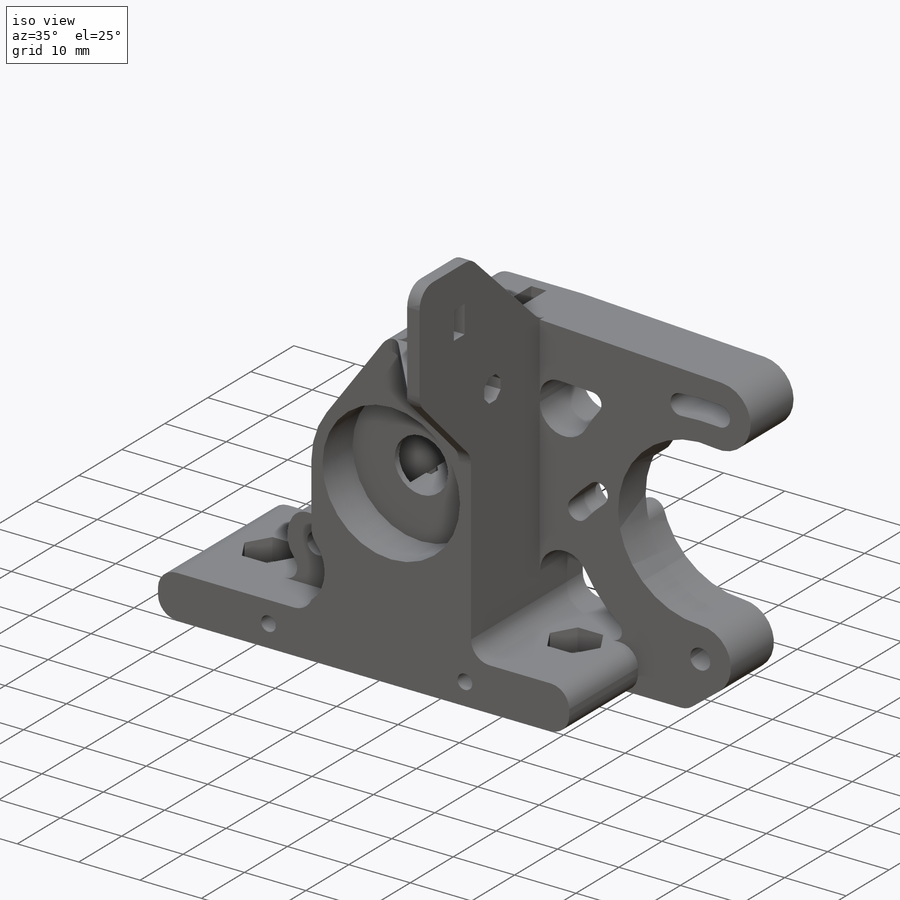
[diagram: iso view]
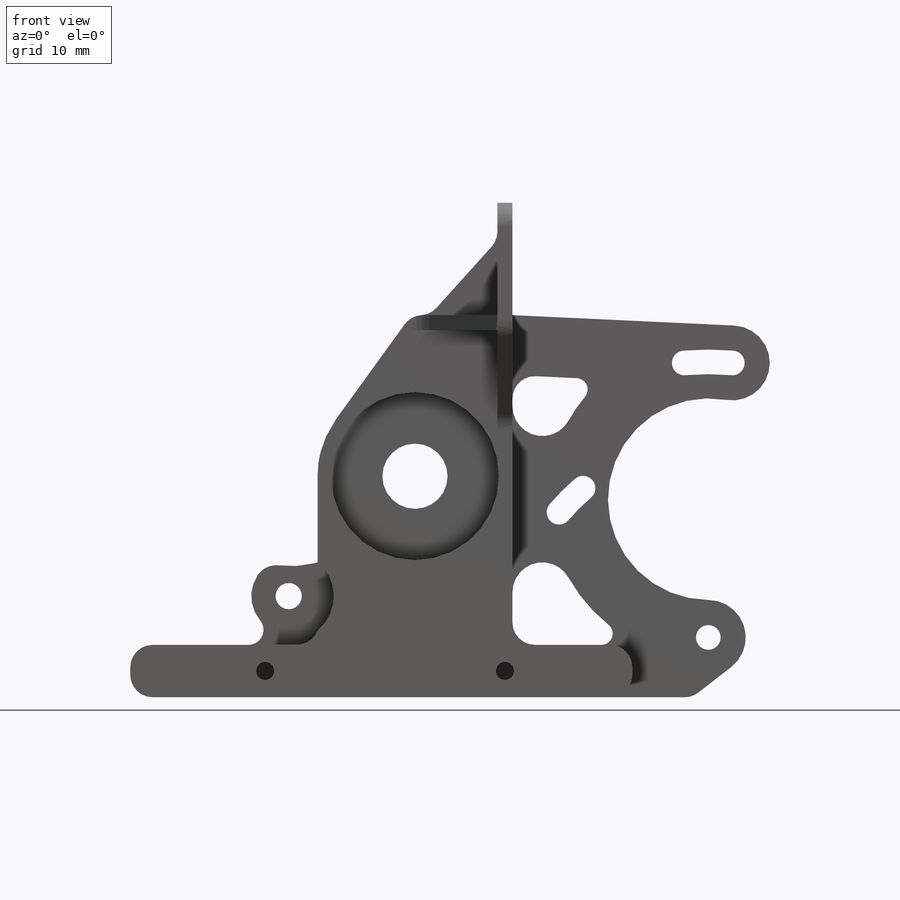
[diagram: front view]
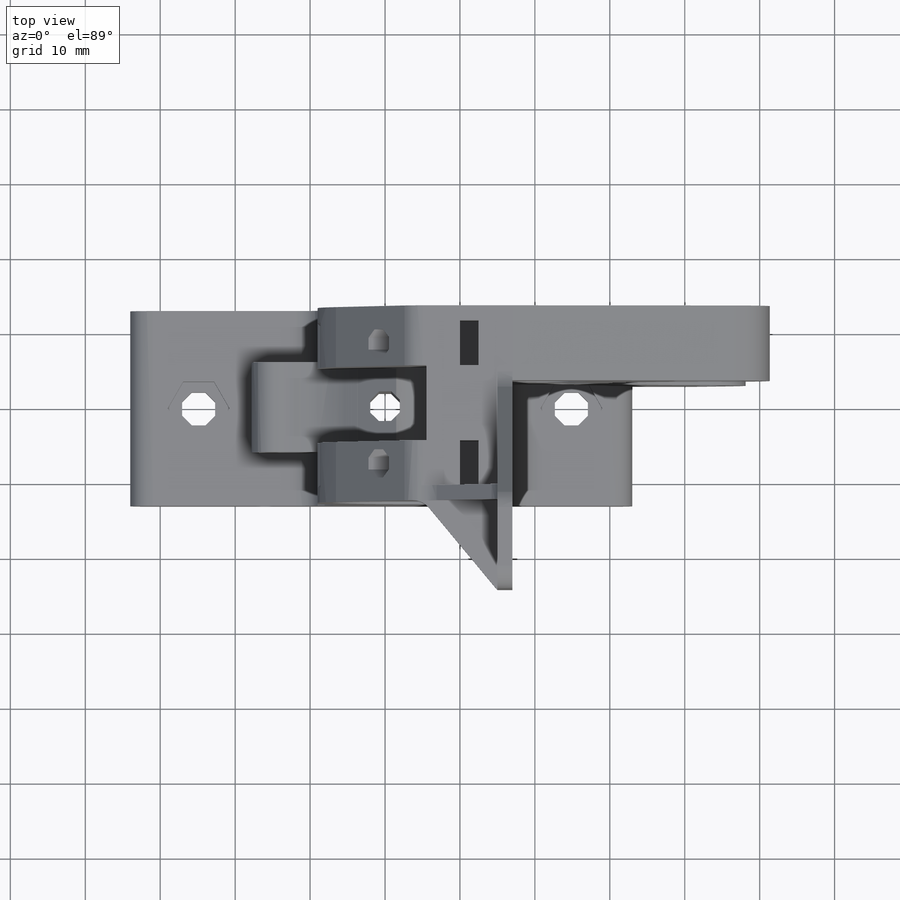
[diagram: top view]
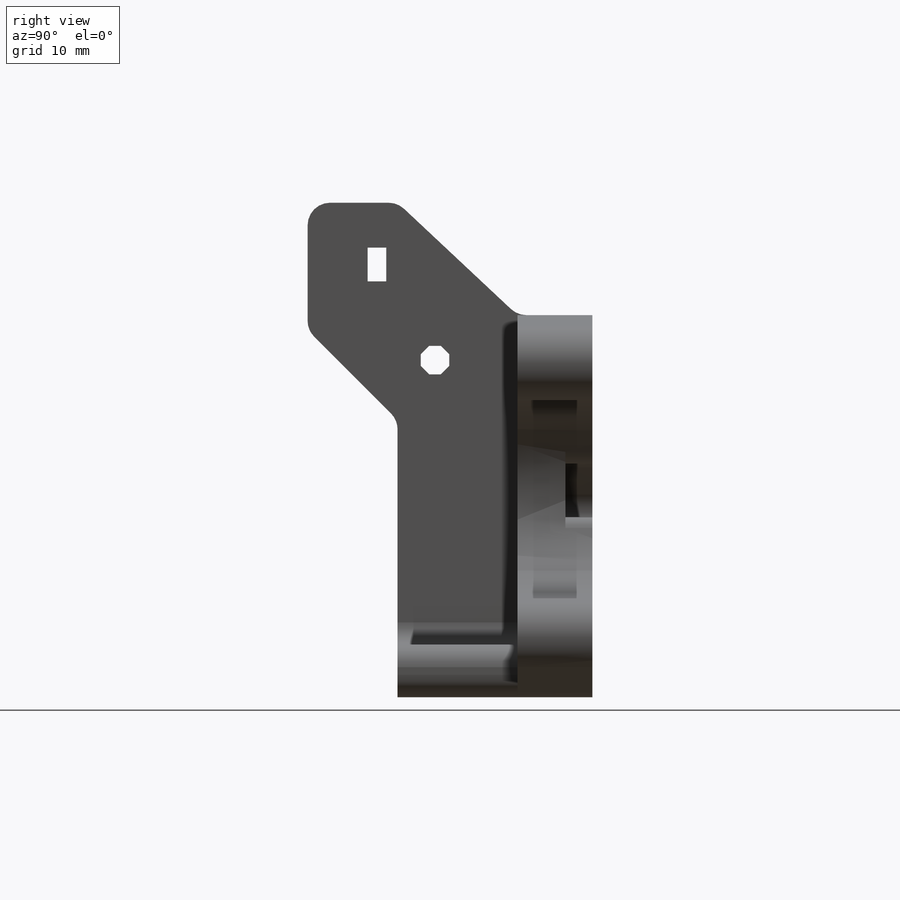
[diagram: right view]
SOLIDWORKS PART (.sldprt)
format: sldprt  version: not decoded by parser v0  size: 2,084,864 bytes
history: native  units: mm
features: sketch x29, cut_extrude x14, extrude x13, fillet x8, chamfer x2, material x1 (+13 scaffold rows collapsed; 1 parser-record rows omitted)
feature tree (81):
  scaffold x13  (default folders/planes/origin — collapsed)
  material  "Material <not specified>"
  sketch  "Base Sketch"  dims[c1.D1=17.0mm c1.D2=~49.581369mm c1.D3=~49.581369mm c2.D2=3.95mm c2.D3=4.4mm c2.D10=7.15mm c3.D3=~15.922975mm c3.D4=49.75mm c3.D5=~16.274285mm c3.D6=~62.927234mm c4.D5=34.0mm c4.D6=41.0mm c4.D7=26.0mm c4.D8=28.0mm c4.D9=~29.290401mm c5.D8=26.0mm c5.D9=29.0mm c5.D11=~8.858924mm c5.D12=~3.677289mm c6.D11=2.5mm c6.D12=6.0mm c6.D13=16.0mm c6.D14=4.5mm c6.D15=53.0mm c6.D9=17.0mm c7.D15=26.0mm c7.D16=~9.735093mm c8.D15=~12.171573mm c8.D16=~10.083902mm c9.D15=10.0mm c9.D16=8.0mm]
  extrude  "Base Plate"  Depth=7mm
  cut_extrude  "Mounting Nut Traps"  [1 undecoded]
  sketch  "Sketch1<6>"  dims[D1=3.5mm]
  cut_extrude  "Hot End Head Bore"  [1 undecoded]
  sketch  "Sketch1<3>"  dims[D1=4.6mm]
  extrude  "Riser Block"  [1 undecoded]
  sketch  "Sketch1<4>"  dims[D1=44.0mm]
  sketch  "Sketch2"  dims[c1.D1=3.5mm c1.D2=10.0mm c1.D6=8.7mm c1.D7=22.4mm c1.D8=22.2mm c1.D10=24.0mm c1.D5=12.0mm c2.D10=~8.574674mm c2.D11=24.0mm c2.D15=2.4mm c2.D19=3.0mm c2.D3=6.0mm c2.D4=10.5mm c2.D5=13.0mm c2.D8=13.0mm c2.D9=33.5mm c3.D11=14.0mm c3.D12=11.5mm c3.D13=~8.621144mm c3.D3=29.85mm c3.D4=37.5mm c4.D13=10.5mm c4.D9=21.5mm c5.D13=~4.153312mm c6.D13=45.0deg c6.D14=~10.541739mm c6.D10=16.0mm c7.D14=~14.052669mm c7.D10=12.5mm c8.D14=1.5mm c8.D15=~26.386789mm c8.D16=32.0mm c8.D17=3.5mm c8.D18=2.0mm]
  extrude  "Idler Hinge"  Depth=12mm
  cut_extrude  "Hobbed Bolt Bore"  [1 undecoded]
  sketch  "Sketch2<3>"
  cut_extrude  "Rear Bearing"  [1 undecoded]
  sketch  "Sketch2<4>"  dims[D1=7.0mm]
  cut_extrude  "Front Bearning"  [1 undecoded]
  sketch  "Sketch2<5>"  dims[D1=7.0mm]
  sketch  "Sketch4"  dims[c1.D1=~73.539105mm c1.D5=3.3mm c1.D6=27.65mm c1.D7=27.65mm c2.D6=10.0mm c2.D7=10.0mm c2.D8=10.0mm c2.D10=4.0mm c2.D11=1.5mm c2.D14=4.0mm c2.D15=1.5mm c2.D1=~36.769553mm c3.D1=5.0deg c3.D2=~36.769553mm c4.D2=5.0deg c4.D3=~18.384776mm c5.D3=5.0deg c5.D4=~22.323244mm c6.D4=5.0deg c6.D5=~18.384776mm c6.D7=~3.033128mm c6.D9=~5.402224mm c6.D11=~32.174246mm c6.D14=~6.721744mm c6.D15=~4.123648mm c6.D6=3.0mm c7.D9=8.0mm c7.D12=8.0mm c7.D13=8.0mm]
  cut_extrude  "Idler Nut Traps"  [1 undecoded]
  sketch  "Sketch1<5>"  dims[D1=9.0mm]
  cut_extrude  "Feed Channel"  [1 undecoded]
  sketch  "Sketch2<6>"  dims[D1=10.0mm D19=8.0mm]
  cut_extrude  "Front Hinge Relief"  [1 undecoded]
  sketch  "Sketch2<7>"
  cut_extrude  "Back Hinge Relief"  [1 undecoded]
  sketch  "Sketch2<8>"
  cut_extrude  "Round Top"  [1 undecoded]
  sketch  "Sketch2<10>"
  extrude  "Motor Mount"  Depth=10mm
  sketch  "Sketch3"  dims[D2=3.8mm D1=16.0mm D3=6.0mm]
  cut_extrude  "Idler Spring Screws"  Depth=32mm
  cut_extrude  "Fan Mount Screw Holes"  [1 undecoded]
  sketch  "Sketch2<11>"  dims[D1=15.0mm]
  fillet  "Fillet1"  Radius=3mm
  fillet  "Fillet2"  Radius=2mm
  sketch  "Sketch6"  dims[D1=2.0mm D2=2.0mm]
  cut_extrude  "Motor Screw Recesses"  Depth=3.6mm
  fillet  "Fillet3"  Radius=3mm
  fillet  "Fillet4"  Radius=2mm
  sketch  "Sketch11"  dims[D1=9.0mm D2=16.5mm]
  cut_extrude  "Pinch Pin Clearance"  Depth=10.5mm
  fillet  "Fillet5"  Radius=2mm
  chamfer  "Chamfer1"  Distance=0.5mm Angle=45deg
  sketch  "Sketch14"  dims[c1.D1=15.0mm c1.D2=12.0mm c1.D3=14.0mm c1.D4=20.0mm c2.D4=135.0deg c2.D5=~3.306205mm c2.D6=~1.608424mm c3.D5=4.5mm c3.D6=2.5mm c3.D7=6.0mm c3.D8=8.0mm]
  extrude  "Cable Anchor"  Depth=2mm
  sketch  "Sketch15"  dims[c1.D1=~15.271351mm c2.D1=2.0mm]
  fillet  "Fillet11"  Radius=3mm
  fillet  "Fillet12"  Radius=2mm
  sketch  "Sketch17"  dims[D1=9.0mm D2=10.0mm]
  chamfer  "Cable Anchor Top Rib"  Distance=2mm
  fillet  "Fillet13"  Radius=3mm
  parser-record x1  (decoder bookkeeping rows leaked as tree rows — omitted from the tree; the rows remain in map.json)
  sketch  "Sketch7"
  extrude  "Support - 1L Bearing"  Depth=0.2mm
  sketch  "Sketch8"  dims[D3=~7.431633mm D1=1.0mm D2=2.0mm]
  extrude  "Support - Motor Screws"  Depth=0.2mm
  sketch  "Sketch9"  dims[D3=~6.220705mm D1=1.0mm D2=2.0mm]
  extrude  "Support - Hinge Web"  Depth=0.2mm
  extrude  "Support - 1L"  [1 undecoded]
  sketch  "Sketch9<3>"
  sketch  "Sketch10"  dims[D3=1.0mm D1=1.0mm D2=2.0mm]
  extrude  "Support - 2L Web"  Depth=0.2mm
  extrude  "Support - 2L Block"  [1 undecoded]
  sketch  "Sketch10<3>"
  extrude  "Support - Screw Web"  [1 undecoded]
  sketch  "Sketch8<4>"
  sketch  "Sketch18"  dims[D1=10.0mm D2=15.0mm]
  extrude  "Boss-Extrude1"  Depth=0.2mm
decode coverage: 43 of 66 modeling features carry decoded parameters
note: ~ marks probable driven/reference dimensions
note: 15 parameter values undecoded
summary: no parameter record found for 15 features
note: suppression state not decoded; provenance and decode notes live in map.json
